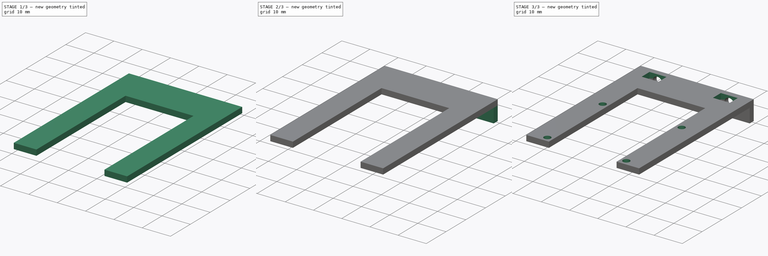
[diagram: build sequence overview — one tinted view per stage of 3, left to right]
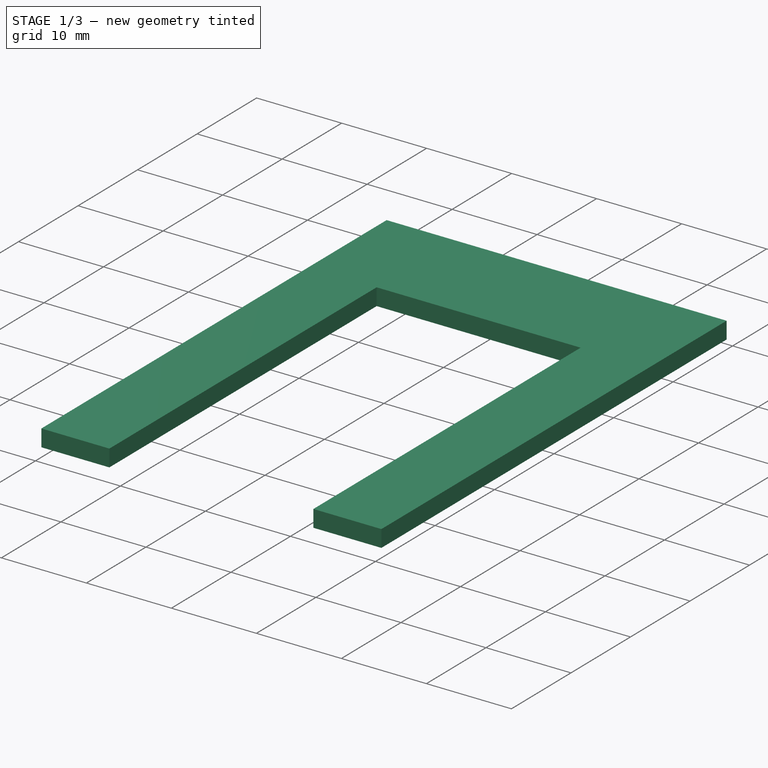
[diagram: stage 1 of 3 — iso view after this stage's code; geometry added in this stage tinted green]
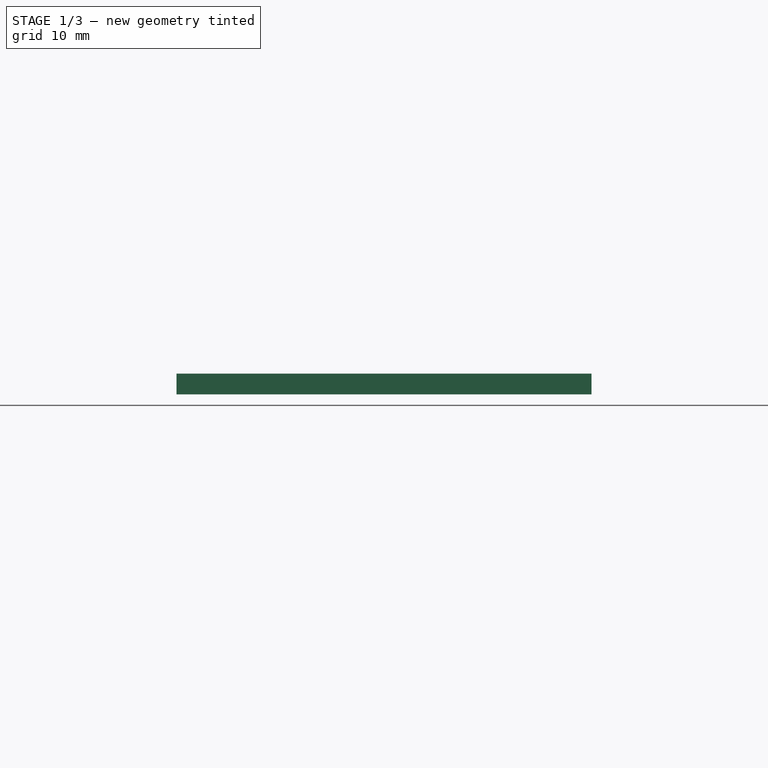
[diagram: stage 1 of 3 — front view after this stage's code; geometry added in this stage tinted green]
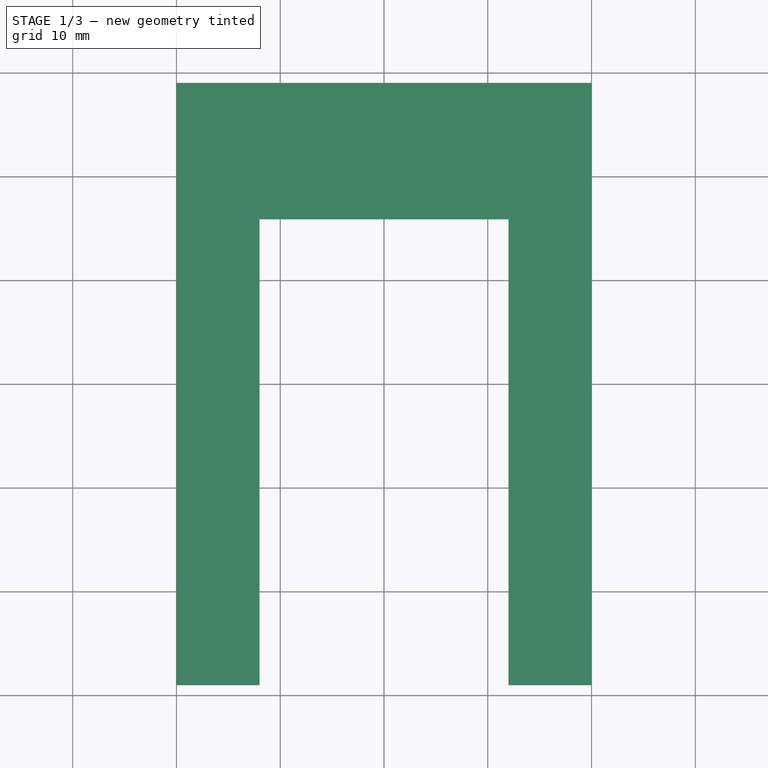
[diagram: stage 1 of 3 — top view after this stage's code; geometry added in this stage tinted green]
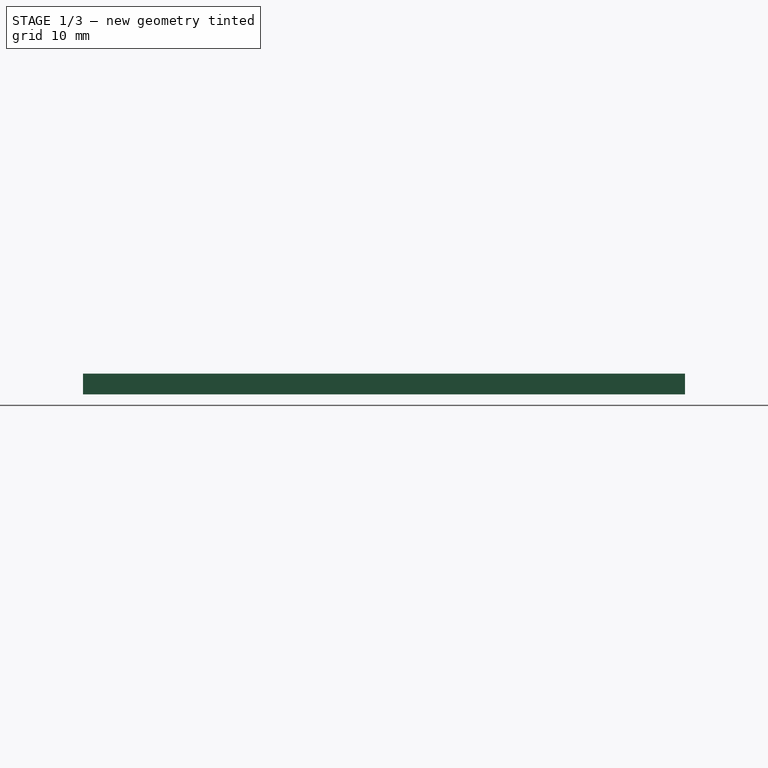
[diagram: stage 1 of 3 — right view after this stage's code; geometry added in this stage tinted green]
FCSTD DOCUMENT  (FreeCAD 0.18.4R)
Label: support_for_camera
License: All rights reserved
LicenseURL: http://en.wikipedia.org/wiki/All_rights_reserved
objects: Sketcher::SketchObject×7, PartDesign::Pocket×5, PartDesign::Pad×2, PartDesign::Body×1
note: 22 computed .brp shape members not serialized (recipe doc carries the construction recipe); baked Part::Feature solids carry a one-line shape summary decoded from their .brp

FEATURE [Sketcher::SketchObject] Sketch
  MapMode = 5
  Support = -> [XY_Plane]
  sketch-geometry (4):
    g0: LineSegment StartX=-20 StartY=29 StartZ=0 EndX=20 EndY=29 EndZ=0
    g1: LineSegment StartX=20 StartY=29 StartZ=0 EndX=20 EndY=-29 EndZ=0
    g2: LineSegment StartX=20 StartY=-29 StartZ=0 EndX=-20 EndY=-29 EndZ=0
    g3: LineSegment StartX=-20 StartY=-29 StartZ=0 EndX=-20 EndY=29 EndZ=0
  constraints (10):
    c: Coincident(g0,g1)
    c: Coincident(g1,g2)
    c: Coincident(g2,g3)
    c: Coincident(g3,g0)
    c: Horizontal(g2)
    c: Vertical(g1)
    c: Symmetric(g0,g0,g-2)
    c: Symmetric(g0,g2,g-1)
    c: DistanceX(g0,g0) = 40
    c: DistanceY(g3,g3) = 58
FEATURE [PartDesign::Pad] Pad
  Length = 2
  Length2 = 100
  Profile = -> Sketch
  Type = 0
FEATURE [Sketcher::SketchObject] Sketch001
  MapMode = 5
  Placement = pos=(0,0,2) rot=(0,0,1;0rad)
  Support = -> [Pad]
  sketch-geometry (4):
    g0: LineSegment StartX=-12 StartY=-34.1025 StartZ=0 EndX=12 EndY=-34.1025 EndZ=0
    g1: LineSegment StartX=12 StartY=-34.1025 StartZ=0 EndX=12 EndY=15.8975 EndZ=0
    g2: LineSegment StartX=12 StartY=15.8975 StartZ=0 EndX=-12 EndY=15.8975 EndZ=0
    g3: LineSegment StartX=-12 StartY=15.8975 StartZ=0 EndX=-12 EndY=-34.1025 EndZ=0
  constraints (10):
    c: Coincident(g0,g1)
    c: Coincident(g1,g2)
    c: Coincident(g2,g3)
    c: Coincident(g3,g0)
    c: Horizontal(g0)
    c: Vertical(g1)
    c: Vertical(g3)
    c: DistanceY(g3,g3) = 50
    c: DistanceX(g2,g2) = 24
    c: Symmetric(g1,g2,g-2)
FEATURE [PartDesign::Pocket] Pocket
  BaseFeature = -> Pad
  Length = 5
  Length2 = 100
  Profile = -> Sketch001
  Type = 0
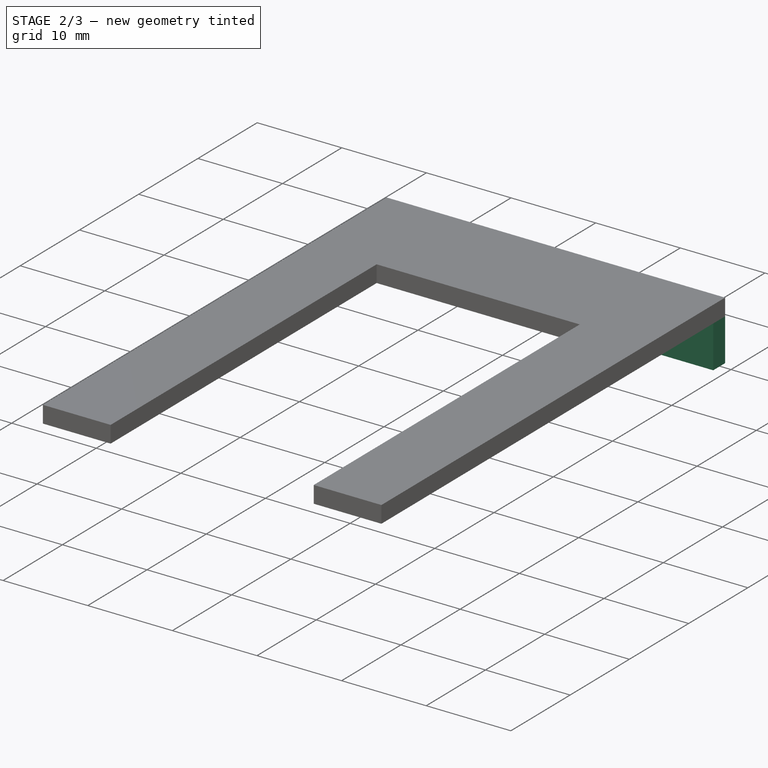
[diagram: stage 2 of 3 — iso view after this stage's code; geometry added in this stage tinted green]
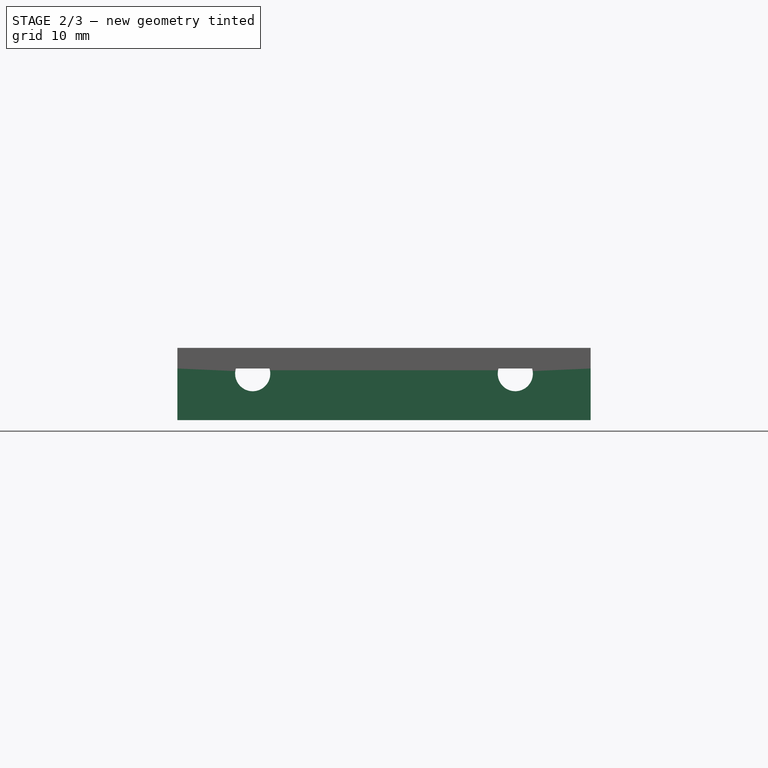
[diagram: stage 2 of 3 — front view after this stage's code; geometry added in this stage tinted green]
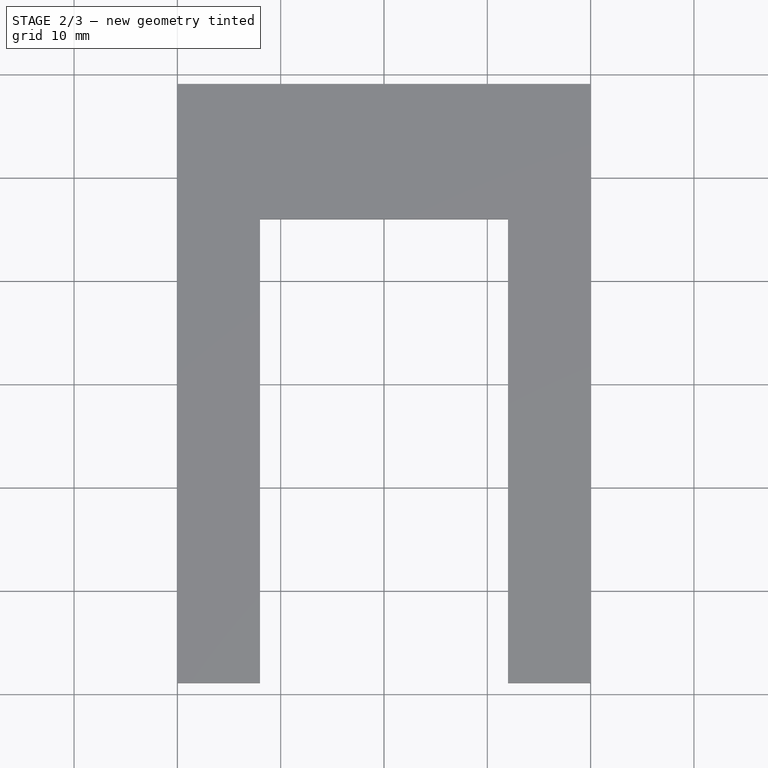
[diagram: stage 2 of 3 — top view after this stage's code; geometry added in this stage tinted green]
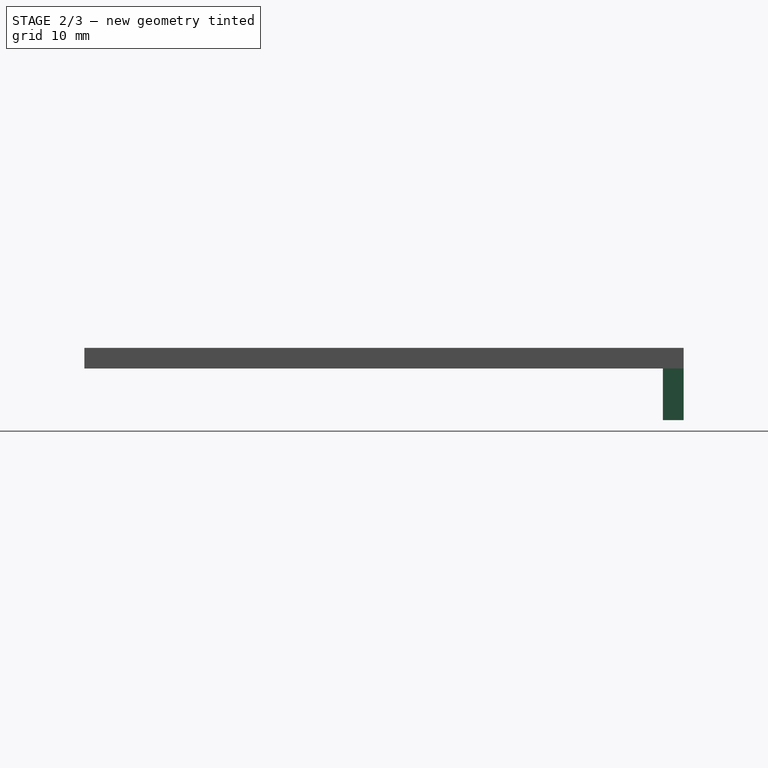
[diagram: stage 2 of 3 — right view after this stage's code; geometry added in this stage tinted green]
FEATURE [Sketcher::SketchObject] Sketch002
  ExternalGeometry = -> [Pocket]
  MapMode = 5
  Placement = pos=(0,0,0) rot=(1,0,0;3.14159rad)
  Support = -> [Pocket]
  sketch-geometry (4):
    g0: LineSegment StartX=-20 StartY=-29 StartZ=0 EndX=20 EndY=-29 EndZ=0
    g1: LineSegment StartX=20 StartY=-29 StartZ=0 EndX=20 EndY=-27 EndZ=0
    g2: LineSegment StartX=20 StartY=-27 StartZ=0 EndX=-20 EndY=-27 EndZ=0
    g3: LineSegment StartX=-20 StartY=-27 StartZ=0 EndX=-20 EndY=-29 EndZ=0
  constraints (11):
    c: Coincident(g0,g1)
    c: Coincident(g1,g2)
    c: Coincident(g2,g3)
    c: Coincident(g3,g0)
    c: Horizontal(g0)
    c: Horizontal(g2)
    c: Vertical(g1)
    c: Vertical(g3)
    c: Coincident(g0,g-4)
    c: PointOnObject(g1,g-5)
    c: Distance(g1) = 2
FEATURE [PartDesign::Pad] Pad001
  BaseFeature = -> Pocket
  Length = 5
  Length2 = 100
  Profile = -> Sketch002
  Type = 0
FEATURE [Sketcher::SketchObject] Sketch004
  ExternalGeometry = -> [Pad001]
  MapMode = 5
  Placement = pos=(0,29,0) rot=(0,0.707107,0.707107;3.14159rad)
  Support = -> [Pad001]
  sketch-geometry (2):
    g0: Circle CenterX=-12.71 CenterY=-0.5 CenterZ=0 NormalX=0 NormalY=0 NormalZ=1 AngleXU=0 Radius=1.7
    g1: Circle CenterX=12.71 CenterY=-0.5 CenterZ=0 NormalX=0 NormalY=0 NormalZ=1 AngleXU=0 Radius=1.7
  constraints (5):
    c: Symmetric(g1,g0,g-2)
    c: Distance(g1,g0) = 25.42
    c: Radius(g0) = 1.7
    c: Radius(g1) = 1.7
    c: Distance(g0,g-3) = 4.5
FEATURE [PartDesign::Pocket] Pocket001
  BaseFeature = -> Pad001
  Length = 7
  Length2 = 100
  Profile = -> Sketch004
  Type = 0
FEATURE [Sketcher::SketchObject] Sketch005
  ExternalGeometry = -> [Pocket001]
  MapMode = 5
  Placement = pos=(20,0,0) rot=(0.57735,0.57735,0.57735;2.0944rad)
  Support = -> [Pocket001]
  sketch-geometry (4):
    g0: Circle CenterX=-14 CenterY=25 CenterZ=0 NormalX=0 NormalY=0 NormalZ=1 AngleXU=0 Radius=1.2
    g1: Circle CenterX=14 CenterY=25 CenterZ=0 NormalX=0 NormalY=0 NormalZ=1 AngleXU=0 Radius=1.2
    g2: Circle CenterX=14 CenterY=-3 CenterZ=0 NormalX=0 NormalY=0 NormalZ=1 AngleXU=0 Radius=1.2
    g3: Circle CenterX=-14 CenterY=-3 CenterZ=0 NormalX=0 NormalY=0 NormalZ=1 AngleXU=0 Radius=1.2
  constraints (10):
    c: Radius(g3) = 1.2
    c: Radius(g0) = 1.2
    c: Radius(g1) = 1.2
    c: Radius(g2) = 1.2
    c: Distance(g1,g2) = 28
    c: Distance(g0,g1) = 28
    c: Symmetric(g0,g1,g-2)
    c: Distance(g2,g3) = 28
    c: Symmetric(g3,g2,g-2)
    c: Distance(g3,g-3) = 2.5
FEATURE [PartDesign::Pocket] Pocket002
  BaseFeature = -> Pocket001
  Length = 5
  Length2 = 100
  Profile = -> Sketch005
  Type = 0
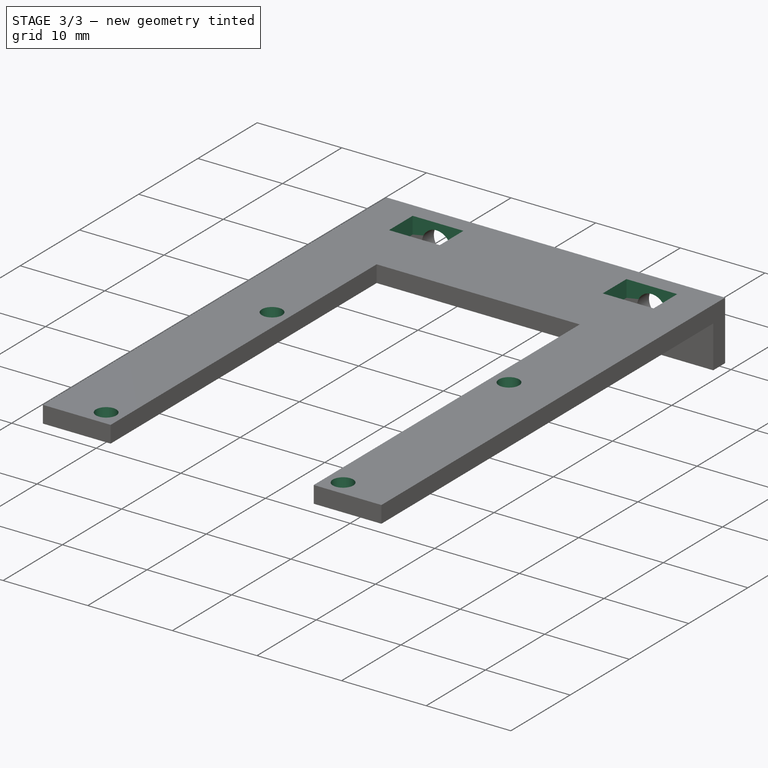
[diagram: stage 3 of 3 — iso view after this stage's code; geometry added in this stage tinted green]
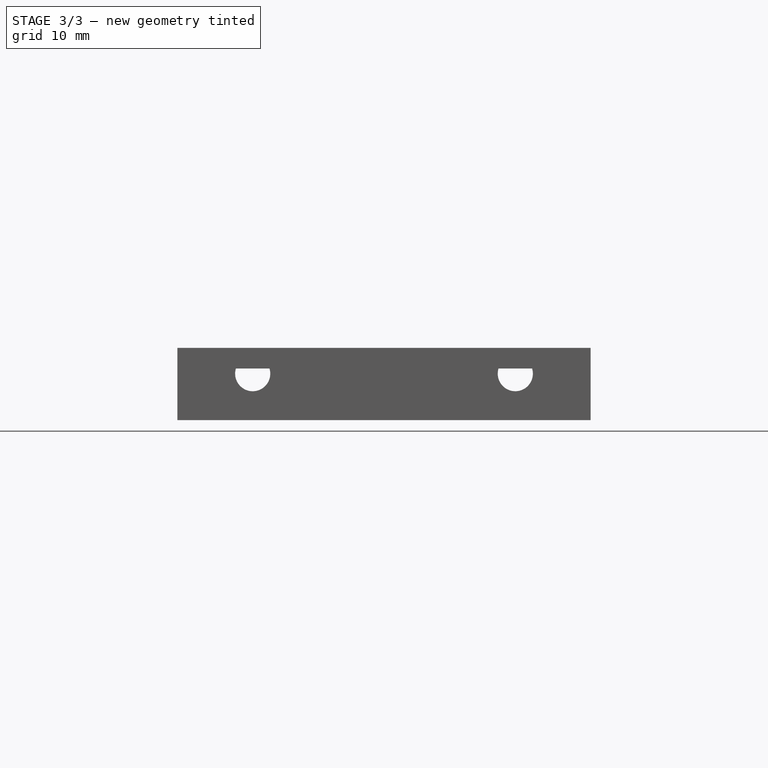
[diagram: stage 3 of 3 — front view after this stage's code; geometry added in this stage tinted green]
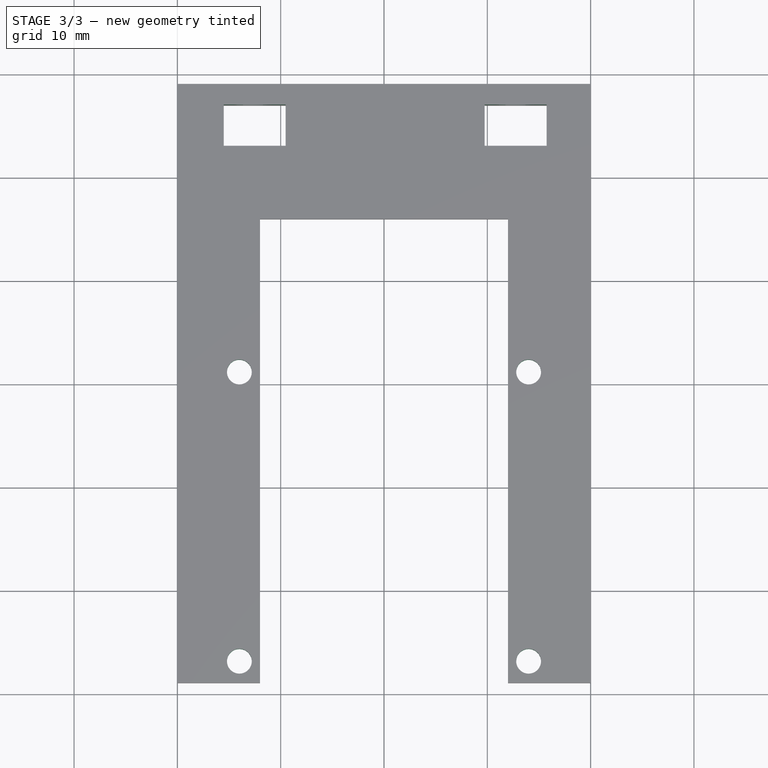
[diagram: stage 3 of 3 — top view after this stage's code; geometry added in this stage tinted green]
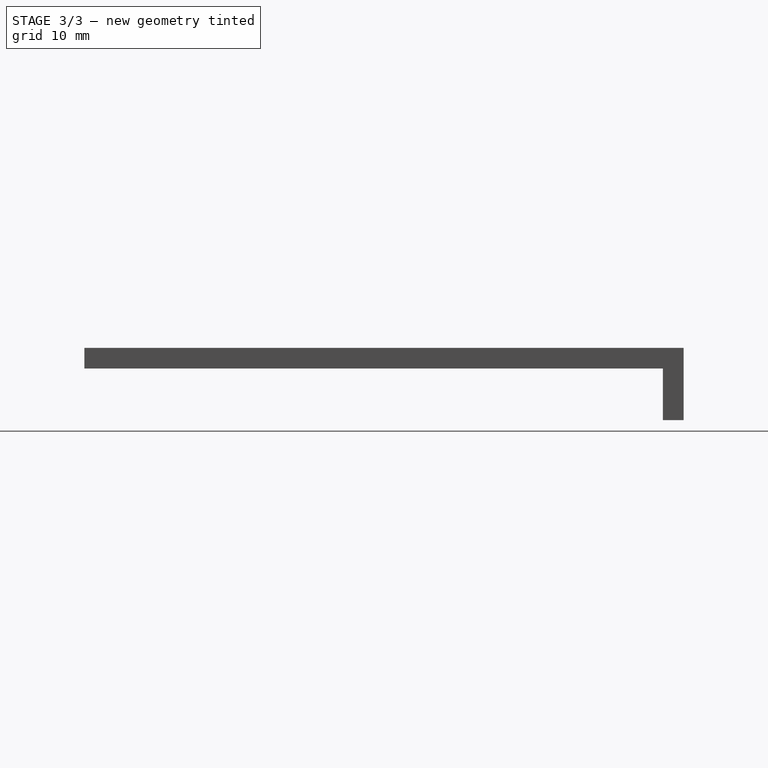
[diagram: stage 3 of 3 — right view after this stage's code; geometry added in this stage tinted green]
FEATURE [Sketcher::SketchObject] Sketch006
  ExternalGeometry = -> [Pocket002]
  MapMode = 5
  Placement = pos=(0,0,0) rot=(1,0,0;3.14159rad)
  Support = -> [Pocket002]
  sketch-geometry (8):
    g0: LineSegment StartX=-15.5171 StartY=-23 StartZ=0 EndX=-9.51709 EndY=-23 EndZ=0
    g1: LineSegment StartX=-9.51709 StartY=-23 StartZ=0 EndX=-9.51709 EndY=-27 EndZ=0
    g2: LineSegment StartX=-9.51709 StartY=-27 StartZ=0 EndX=-15.5171 EndY=-27 EndZ=0
    g3: LineSegment StartX=-15.5171 StartY=-27 StartZ=0 EndX=-15.5171 EndY=-23 EndZ=0
    g4: LineSegment StartX=9.74634 StartY=-23 StartZ=0 EndX=15.7463 EndY=-23 EndZ=0
    g5: LineSegment StartX=15.7463 StartY=-23 StartZ=0 EndX=15.7463 EndY=-27 EndZ=0
    g6: LineSegment StartX=15.7463 StartY=-27 StartZ=0 EndX=9.74634 EndY=-27 EndZ=0
    g7: LineSegment StartX=9.74634 StartY=-27 StartZ=0 EndX=9.74634 EndY=-23 EndZ=0
  constraints (23):
    c: Coincident(g0,g1)
    c: Coincident(g1,g2)
    c: Coincident(g2,g3)
    c: Coincident(g3,g0)
    c: Horizontal(g0)
    c: Horizontal(g2)
    c: Vertical(g1)
    c: Vertical(g3)
    c: Coincident(g4,g5)
    c: Coincident(g5,g6)
    c: Coincident(g6,g7)
    c: Coincident(g7,g4)
    c: Horizontal(g4)
    c: Horizontal(g6)
    c: Vertical(g5)
    c: Vertical(g7)
    c: PointOnObject(g2,g-3)
    c: PointOnObject(g6,g-3)
    c: DistanceX(g0,g0) = 6
    c: DistanceX(g4,g4) = 6
    c: Distance(g-5,g-4) = 3.24962
    c: DistanceY(g1,g1) = 4
    c: DistanceY(g5,g5) = 4
FEATURE [PartDesign::Pocket] Pocket003
  BaseFeature = -> Pocket002
  Length = 5
  Length2 = 100
  Profile = -> Sketch006
  Type = 0
FEATURE [Sketcher::SketchObject] Sketch007
  MapMode = 5
  Placement = pos=(0,0,0) rot=(1,0,0;3.14159rad)
  Support = -> [Pocket003]
  sketch-geometry (4):
    g0: Circle CenterX=-14 CenterY=26.8983 CenterZ=0 NormalX=0 NormalY=0 NormalZ=1 AngleXU=0 Radius=1.2
    g1: Circle CenterX=14 CenterY=26.8983 CenterZ=0 NormalX=0 NormalY=0 NormalZ=1 AngleXU=0 Radius=1.2
    g2: Circle CenterX=14 CenterY=-1.10169 CenterZ=0 NormalX=0 NormalY=0 NormalZ=1 AngleXU=0 Radius=1.2
    g3: Circle CenterX=-14 CenterY=-1.10169 CenterZ=0 NormalX=0 NormalY=0 NormalZ=1 AngleXU=0 Radius=1.2
  constraints (10):
    c: Horizontal(g3,g2)
    c: Distance(g3,g2) = 28
    c: Distance(g0,g1) = 28
    c: Vertical(g0,g3)
    c: Distance(g3,g0) = 28
    c: Symmetric(g0,g1,g-2)
    c: Radius(g0) = 1.2
    c: Radius(g1) = 1.2
    c: Radius(g3) = 1.2
    c: Radius(g2) = 1.2
FEATURE [PartDesign::Pocket] Pocket004
  BaseFeature = -> Pocket003
  Length = 5
  Length2 = 100
  Profile = -> Sketch007
  Type = 0
FEATURE [PartDesign::Body] Body
  Group = -> [Sketch,Pad,Sketch001,Pocket,Sketch002,Pad001,Sketch004,Pocket001,Sketch005,Pocket002,Sketch006,Pocket003,Sketch007,Pocket004]
  Origin = -> Origin
  Tip = -> Pocket004
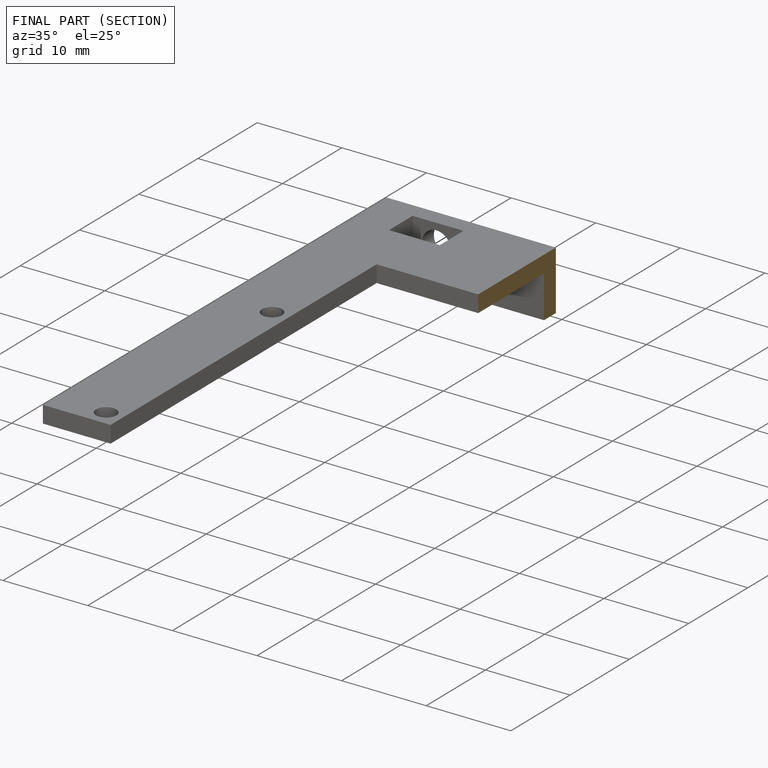
[diagram: finished part — half-section view (interior)]
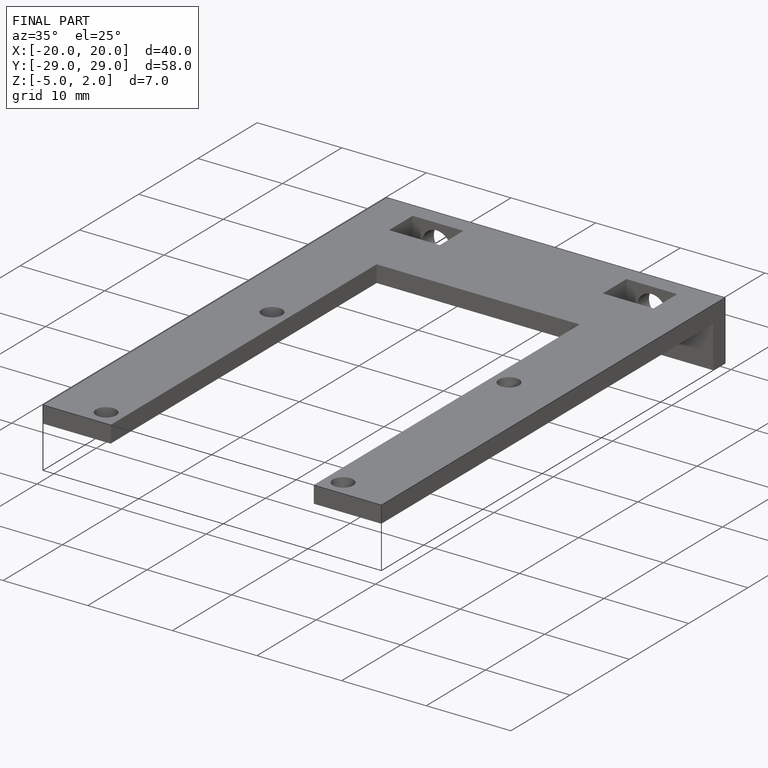
[diagram: finished part — iso view with bounding-box wireframe]
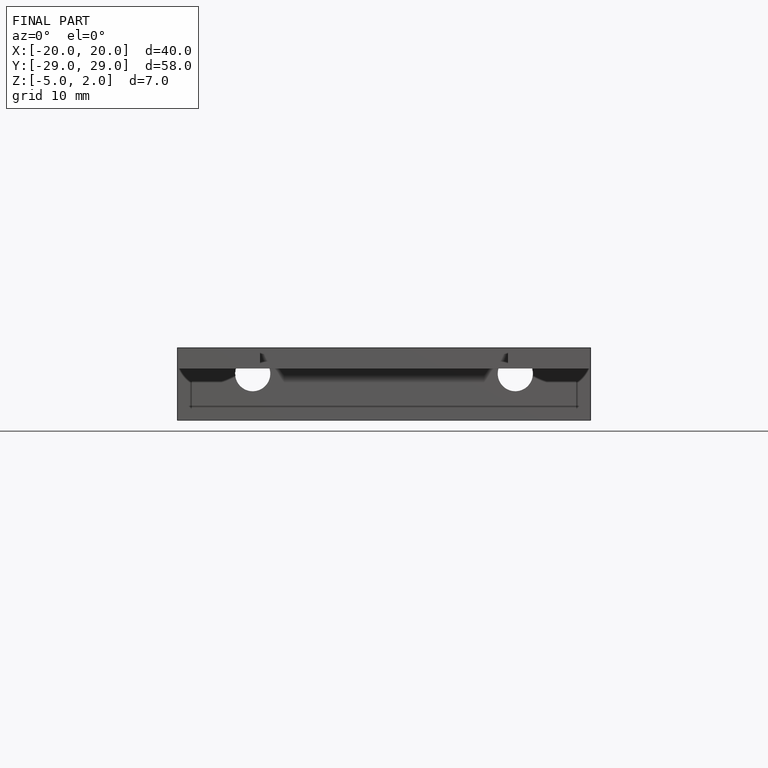
[diagram: finished part — front view with bounding-box wireframe]
